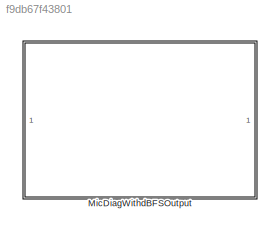
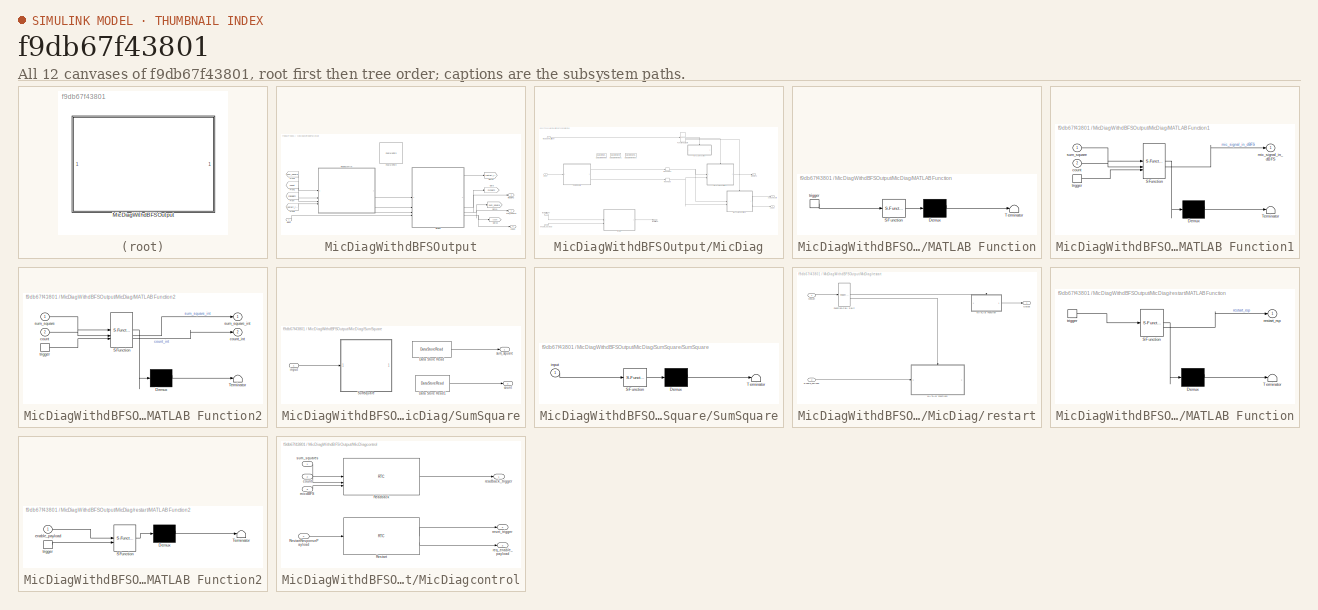
[diagram: thumbnail index - all 12 canvases of the model, root first then tree order]
MODEL slx_f9db67f43801
KIND library
CONFIG AbsTol = auto
CONFIG EnableMultiTasking = off
CONFIG FixedStep = auto
CONFIG MaxStep = auto
CONFIG MinStep = auto
CONFIG RelTol = 1e-3
CONFIG SampleTimeConstraint = Unconstrained
CONFIG SolverName = VariableStepAuto
CONFIG StartTime = 0.0
CONFIG StopTime = 10.0
BLOCK [SubSystem] MicDiagWithdBFSOutput
BLOCK [Reference] MicDiagWithdBFSOutput/FeaturePath  REF=FeaturePath/FeaturePath
  SourceBlock = FeaturePath/FeaturePath
  SourceProductName = Bose Talaria
  SourceType = Talaria Feature Path
BLOCK [From] MicDiagWithdBFSOutput/From
  GotoTag = micdBFS
BLOCK [From] MicDiagWithdBFSOutput/From1
  GotoTag = count
BLOCK [From] MicDiagWithdBFSOutput/From2
  GotoTag = restart_rsp
BLOCK [From] MicDiagWithdBFSOutput/From3
  GotoTag = sum_square
BLOCK [Goto] MicDiagWithdBFSOutput/Goto
  GotoTag = micdBFS
BLOCK [Goto] MicDiagWithdBFSOutput/Goto1
  GotoTag = sum_square
BLOCK [Goto] MicDiagWithdBFSOutput/Goto2
  GotoTag = restart_rsp
BLOCK [Goto] MicDiagWithdBFSOutput/Goto3
  GotoTag = count
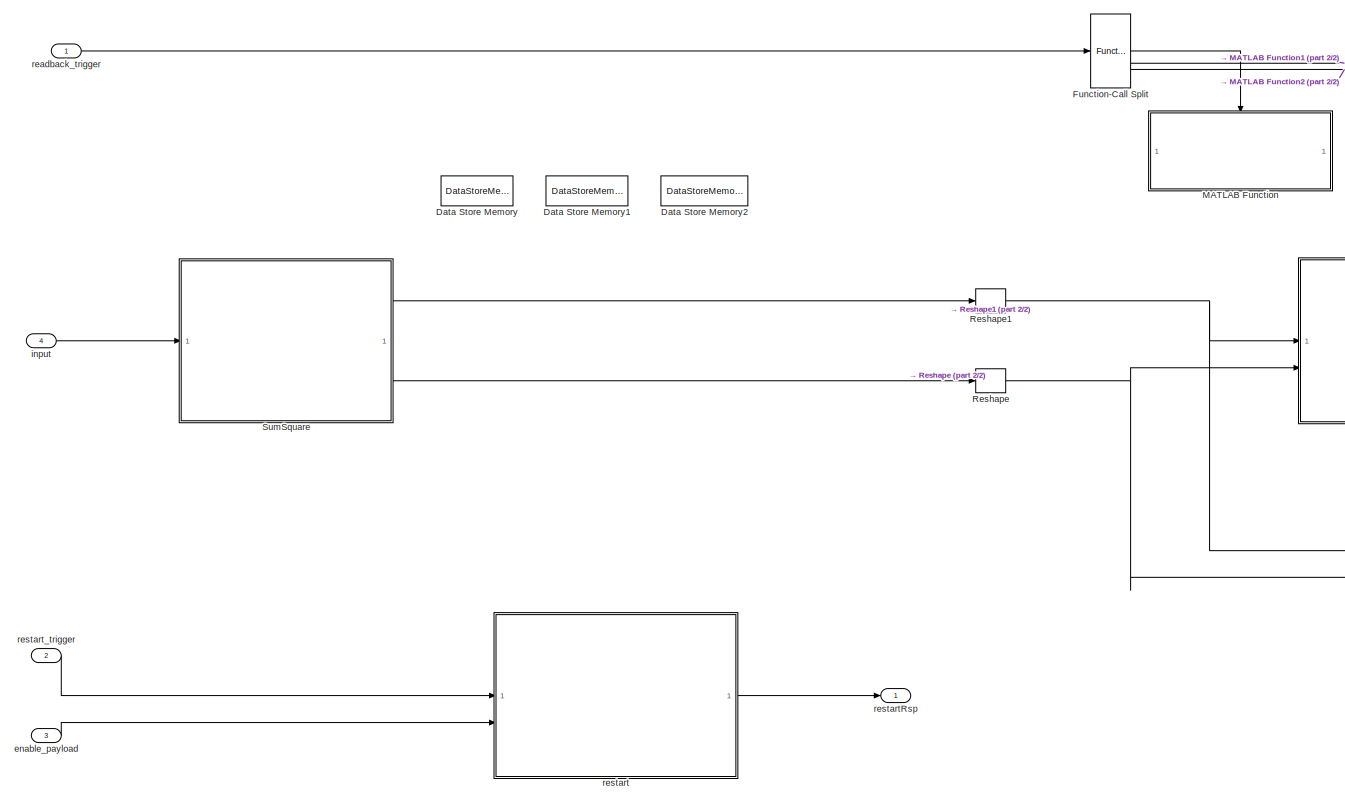
[diagram: MicDiagWithdBFSOutput/MicDiag - part 1/2, center side, full height]
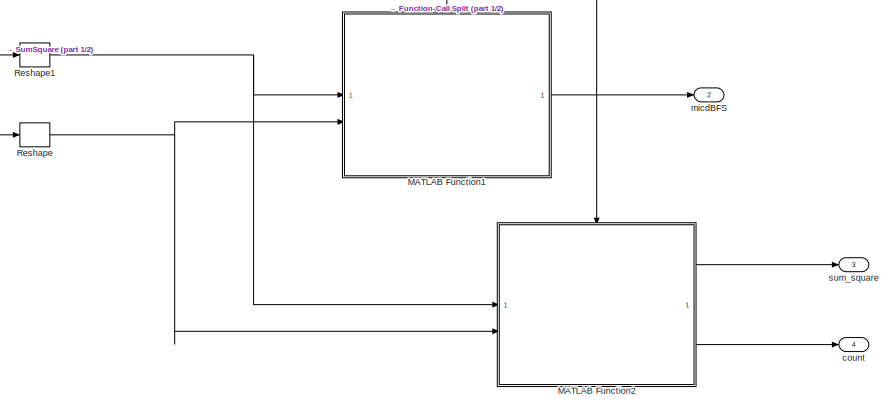
[diagram: MicDiagWithdBFSOutput/MicDiag - part 2/2, middle right region]
BLOCK [SubSystem] MicDiagWithdBFSOutput/MicDiag
BLOCK [DataStoreMemory] MicDiagWithdBFSOutput/MicDiag/Data Store Memory
  DataStoreName = acc_sum
  InitialValue = zeros(numMicIn,1)
  OutDataTypeStr = single
  ShowAdditionalParam = off
  SignalType = real
BLOCK [DataStoreMemory] MicDiagWithdBFSOutput/MicDiag/Data Store Memory1
  DataStoreName = count
  InitialValue = zeros(numMicIn,1)
  OutDataTypeStr = int32
  ShowAdditionalParam = off
  SignalType = real
BLOCK [DataStoreMemory] MicDiagWithdBFSOutput/MicDiag/Data Store Memory2
  DataStoreName = enable
  InitialValue = zeros(numMicIn,1)
  OutDataTypeStr = int32
  ShowAdditionalParam = off
  SignalType = real
BLOCK [FunctionCallSplit] MicDiagWithdBFSOutput/MicDiag/Function-Call Split
  IconShape = distinctive
  NumOutputPorts = 3
BLOCK [SubSystem] MicDiagWithdBFSOutput/MicDiag/MATLAB Function
  ErrorFcn = Stateflow.Translate.translate
  PermitHierarchicalResolution = ExplicitOnly
  SFBlockType = MATLAB Function
  TreatAsAtomicUnit = on
BLOCK [Demux] MicDiagWithdBFSOutput/MicDiag/MATLAB Function/ Demux 
  Outputs = 1
BLOCK [S-Function] MicDiagWithdBFSOutput/MicDiag/MATLAB Function/ SFunction 
  EnableBusSupport = off
  FunctionName = sf_sfun
  PortCounts = [1 1]
  SFcnIsStateOwnerBlock = off
  SFunctionDeploymentMode = off
  Tag = Stateflow S-Function 1
BLOCK [Terminator] MicDiagWithdBFSOutput/MicDiag/MATLAB Function/ Terminator 
BLOCK [TriggerPort] MicDiagWithdBFSOutput/MicDiag/MATLAB Function/trigger
  ShowOutputPort = on
  StatesWhenEnabling = held
  TriggerType = function-call
  VariantControl = (inherit)
BLOCK [SubSystem] MicDiagWithdBFSOutput/MicDiag/MATLAB Function1
  ErrorFcn = Stateflow.Translate.translate
  PermitHierarchicalResolution = ExplicitOnly
  SFBlockType = MATLAB Function
  TreatAsAtomicUnit = on
BLOCK [Demux] MicDiagWithdBFSOutput/MicDiag/MATLAB Function1/ Demux 
  Outputs = 1
BLOCK [S-Function] MicDiagWithdBFSOutput/MicDiag/MATLAB Function1/ SFunction 
  EnableBusSupport = off
  FunctionName = sf_sfun
  PortCounts = [3 2]
  SFcnIsStateOwnerBlock = off
  SFunctionDeploymentMode = off
  Tag = Stateflow S-Function 5
BLOCK [Terminator] MicDiagWithdBFSOutput/MicDiag/MATLAB Function1/ Terminator 
BLOCK [Inport] MicDiagWithdBFSOutput/MicDiag/MATLAB Function1/count
  Port = 2
BLOCK [Outport] MicDiagWithdBFSOutput/MicDiag/MATLAB Function1/mic_signal_in_dBFS
BLOCK [Inport] MicDiagWithdBFSOutput/MicDiag/MATLAB Function1/sum_square
BLOCK [TriggerPort] MicDiagWithdBFSOutput/MicDiag/MATLAB Function1/trigger
  ShowOutputPort = on
  StatesWhenEnabling = held
  TriggerType = function-call
  VariantControl = (inherit)
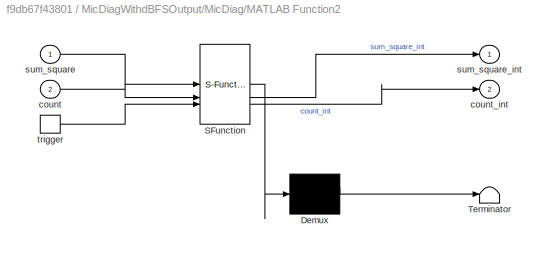
BLOCK [SubSystem] MicDiagWithdBFSOutput/MicDiag/MATLAB Function2
  ErrorFcn = Stateflow.Translate.translate
  PermitHierarchicalResolution = ExplicitOnly
  SFBlockType = MATLAB Function
  TreatAsAtomicUnit = on
BLOCK [Demux] MicDiagWithdBFSOutput/MicDiag/MATLAB Function2/ Demux 
  Outputs = 1
BLOCK [S-Function] MicDiagWithdBFSOutput/MicDiag/MATLAB Function2/ SFunction 
  EnableBusSupport = off
  FunctionName = sf_sfun
  PortCounts = [3 3]
  SFcnIsStateOwnerBlock = off
  SFunctionDeploymentMode = off
  Tag = Stateflow S-Function 6
BLOCK [Terminator] MicDiagWithdBFSOutput/MicDiag/MATLAB Function2/ Terminator 
BLOCK [Inport] MicDiagWithdBFSOutput/MicDiag/MATLAB Function2/count
  Port = 2
BLOCK [Outport] MicDiagWithdBFSOutput/MicDiag/MATLAB Function2/count_int
  Port = 2
BLOCK [Inport] MicDiagWithdBFSOutput/MicDiag/MATLAB Function2/sum_square
BLOCK [Outport] MicDiagWithdBFSOutput/MicDiag/MATLAB Function2/sum_square_int
BLOCK [TriggerPort] MicDiagWithdBFSOutput/MicDiag/MATLAB Function2/trigger
  ShowOutputPort = on
  StatesWhenEnabling = held
  TriggerType = function-call
  VariantControl = (inherit)
BLOCK [Reshape] MicDiagWithdBFSOutput/MicDiag/Reshape
  OutputDimensionality = Row vector (2-D)
BLOCK [Reshape] MicDiagWithdBFSOutput/MicDiag/Reshape1
  OutputDimensionality = Row vector (2-D)
BLOCK [SubSystem] MicDiagWithdBFSOutput/MicDiag/SumSquare
BLOCK [DataStoreRead] MicDiagWithdBFSOutput/MicDiag/SumSquare/Data Store Read
  DataStoreName = acc_sum
  IndexOptions = Index vector (dialog)
  Indices = 1
  OutputSizes = 1
BLOCK [DataStoreRead] MicDiagWithdBFSOutput/MicDiag/SumSquare/Data Store Read1
  DataStoreName = count
  IndexOptions = Index vector (dialog)
  Indices = 1
  OutputSizes = 1
BLOCK [SubSystem] MicDiagWithdBFSOutput/MicDiag/SumSquare/SumSquare
  ErrorFcn = Stateflow.Translate.translate
  PermitHierarchicalResolution = ExplicitOnly
  SFBlockType = MATLAB Function
  TreatAsAtomicUnit = on
BLOCK [Demux] MicDiagWithdBFSOutput/MicDiag/SumSquare/SumSquare/ Demux 
  Outputs = 1
BLOCK [S-Function] MicDiagWithdBFSOutput/MicDiag/SumSquare/SumSquare/ SFunction 
  EnableBusSupport = off
  FunctionName = sf_sfun
  PortCounts = [1 1]
  SFcnIsStateOwnerBlock = off
  SFunctionDeploymentMode = off
  Tag = Stateflow S-Function 2
BLOCK [Terminator] MicDiagWithdBFSOutput/MicDiag/SumSquare/SumSquare/ Terminator 
BLOCK [Inport] MicDiagWithdBFSOutput/MicDiag/SumSquare/SumSquare/input
BLOCK [Outport] MicDiagWithdBFSOutput/MicDiag/SumSquare/count
  Port = 2
BLOCK [Inport] MicDiagWithdBFSOutput/MicDiag/SumSquare/input
BLOCK [Outport] MicDiagWithdBFSOutput/MicDiag/SumSquare/sum_square
BLOCK [Outport] MicDiagWithdBFSOutput/MicDiag/count
  OutDataTypeStr = uint32
  Port = 4
BLOCK [Inport] MicDiagWithdBFSOutput/MicDiag/enable_payload
  Port = 3
BLOCK [Inport] MicDiagWithdBFSOutput/MicDiag/input
  OutDataTypeStr = single
  Port = 4
BLOCK [Outport] MicDiagWithdBFSOutput/MicDiag/micdBFS
  OutDataTypeStr = single
  Port = 2
BLOCK [Inport] MicDiagWithdBFSOutput/MicDiag/readback_trigger
BLOCK [SubSystem] MicDiagWithdBFSOutput/MicDiag/restart
BLOCK [Inport] MicDiagWithdBFSOutput/MicDiag/restart/Enable_payload
  Port = 2
BLOCK [FunctionCallSplit] MicDiagWithdBFSOutput/MicDiag/restart/Function-Call Split
  IconShape = distinctive
  NumOutputPorts = 2
  OutputPortLayout = default
BLOCK [SubSystem] MicDiagWithdBFSOutput/MicDiag/restart/MATLAB Function
  ErrorFcn = Stateflow.Translate.translate
  PermitHierarchicalResolution = ExplicitOnly
  SFBlockType = MATLAB Function
  TreatAsAtomicUnit = on
BLOCK [Demux] MicDiagWithdBFSOutput/MicDiag/restart/MATLAB Function/ Demux 
  Outputs = 1
BLOCK [S-Function] MicDiagWithdBFSOutput/MicDiag/restart/MATLAB Function/ SFunction 
  EnableBusSupport = off
  FunctionName = sf_sfun
  PortCounts = [1 2]
  SFcnIsStateOwnerBlock = off
  SFunctionDeploymentMode = off
  Tag = Stateflow S-Function 3
BLOCK [Terminator] MicDiagWithdBFSOutput/MicDiag/restart/MATLAB Function/ Terminator 
BLOCK [Outport] MicDiagWithdBFSOutput/MicDiag/restart/MATLAB Function/restart_rsp
BLOCK [TriggerPort] MicDiagWithdBFSOutput/MicDiag/restart/MATLAB Function/trigger
  ShowOutputPort = on
  StatesWhenEnabling = held
  TriggerType = function-call
  VariantControl = (inherit)
BLOCK [SubSystem] MicDiagWithdBFSOutput/MicDiag/restart/MATLAB Function2
  ErrorFcn = Stateflow.Translate.translate
  PermitHierarchicalResolution = ExplicitOnly
  SFBlockType = MATLAB Function
  TreatAsAtomicUnit = on
BLOCK [Demux] MicDiagWithdBFSOutput/MicDiag/restart/MATLAB Function2/ Demux 
  Outputs = 1
BLOCK [S-Function] MicDiagWithdBFSOutput/MicDiag/restart/MATLAB Function2/ SFunction 
  EnableBusSupport = off
  FunctionName = sf_sfun
  PortCounts = [2 1]
  SFcnIsStateOwnerBlock = off
  SFunctionDeploymentMode = off
  Tag = Stateflow S-Function 4
BLOCK [Terminator] MicDiagWithdBFSOutput/MicDiag/restart/MATLAB Function2/ Terminator 
BLOCK [Inport] MicDiagWithdBFSOutput/MicDiag/restart/MATLAB Function2/enable_payload
BLOCK [TriggerPort] MicDiagWithdBFSOutput/MicDiag/restart/MATLAB Function2/trigger
  ShowOutputPort = on
  StatesWhenEnabling = held
  TriggerType = function-call
  VariantControl = (inherit)
BLOCK [Outport] MicDiagWithdBFSOutput/MicDiag/restart/Output
BLOCK [Inport] MicDiagWithdBFSOutput/MicDiag/restart/restart
BLOCK [Outport] MicDiagWithdBFSOutput/MicDiag/restartRsp
BLOCK [Inport] MicDiagWithdBFSOutput/MicDiag/restart_trigger
  Port = 2
BLOCK [Outport] MicDiagWithdBFSOutput/MicDiag/sum_square
  OutDataTypeStr = uint32
  Port = 3
BLOCK [SubSystem] MicDiagWithdBFSOutput/MicDiagcontrol
BLOCK [Reference] MicDiagWithdBFSOutput/MicDiagcontrol/Readback  REF=RTC/RTC
  SourceBlock = RTC/RTC
  SourceProductName = Bose Talaria
  SourceType = Talaria RTC Receive
BLOCK [Reference] MicDiagWithdBFSOutput/MicDiagcontrol/Restart  REF=RTC/RTC
  SourceBlock = RTC/RTC
  SourceProductName = Bose Talaria
  SourceType = Talaria RTC Receive
BLOCK [Inport] MicDiagWithdBFSOutput/MicDiagcontrol/RestartResponsePayload
  Port = 4
BLOCK [Inport] MicDiagWithdBFSOutput/MicDiagcontrol/count
  Port = 2
BLOCK [Inport] MicDiagWithdBFSOutput/MicDiagcontrol/micdBFS
  Port = 3
BLOCK [Outport] MicDiagWithdBFSOutput/MicDiagcontrol/readback_trigger
BLOCK [Outport] MicDiagWithdBFSOutput/MicDiagcontrol/req_enable_payload
  Port = 3
BLOCK [Outport] MicDiagWithdBFSOutput/MicDiagcontrol/reset_trigger
  Port = 2
BLOCK [Inport] MicDiagWithdBFSOutput/MicDiagcontrol/sum_squares
BLOCK [Outport] MicDiagWithdBFSOutput/count
  Port = 2
BLOCK [Inport] MicDiagWithdBFSOutput/input
BLOCK [Outport] MicDiagWithdBFSOutput/micdBFS
  Port = 3
BLOCK [Outport] MicDiagWithdBFSOutput/sum_square
LINE MicDiagWithdBFSOutput/From1:1 -> MicDiagWithdBFSOutput/MicDiagcontrol:2
LINE MicDiagWithdBFSOutput/From2:1 -> MicDiagWithdBFSOutput/MicDiagcontrol:4
LINE MicDiagWithdBFSOutput/From3:1 -> MicDiagWithdBFSOutput/MicDiagcontrol:1
LINE MicDiagWithdBFSOutput/From:1 -> MicDiagWithdBFSOutput/MicDiagcontrol:3
LINE MicDiagWithdBFSOutput/MicDiag/Function-Call Split:1 -> MicDiagWithdBFSOutput/MicDiag/MATLAB Function:trigger
LINE MicDiagWithdBFSOutput/MicDiag/Function-Call Split:2 -> MicDiagWithdBFSOutput/MicDiag/MATLAB Function1:trigger
LINE MicDiagWithdBFSOutput/MicDiag/Function-Call Split:3 -> MicDiagWithdBFSOutput/MicDiag/MATLAB Function2:trigger
LINE MicDiagWithdBFSOutput/MicDiag/MATLAB Function1:1 -> MicDiagWithdBFSOutput/MicDiag/micdBFS:1
LINE MicDiagWithdBFSOutput/MicDiag/MATLAB Function2:1 -> MicDiagWithdBFSOutput/MicDiag/sum_square:1
LINE MicDiagWithdBFSOutput/MicDiag/MATLAB Function2:2 -> MicDiagWithdBFSOutput/MicDiag/count:1
NET MicDiagWithdBFSOutput/MicDiag/Reshape1:1 -> MicDiagWithdBFSOutput/MicDiag/MATLAB Function1:1, MicDiagWithdBFSOutput/MicDiag/MATLAB Function2:1
NET MicDiagWithdBFSOutput/MicDiag/Reshape:1 -> MicDiagWithdBFSOutput/MicDiag/MATLAB Function1:2, MicDiagWithdBFSOutput/MicDiag/MATLAB Function2:2
LINE MicDiagWithdBFSOutput/MicDiag/SumSquare/Data Store Read1:1 -> MicDiagWithdBFSOutput/MicDiag/SumSquare/count:1
LINE MicDiagWithdBFSOutput/MicDiag/SumSquare/Data Store Read:1 -> MicDiagWithdBFSOutput/MicDiag/SumSquare/sum_square:1
LINE MicDiagWithdBFSOutput/MicDiag/SumSquare/input:1 -> MicDiagWithdBFSOutput/MicDiag/SumSquare/SumSquare:1
LINE MicDiagWithdBFSOutput/MicDiag/SumSquare:1 -> MicDiagWithdBFSOutput/MicDiag/Reshape1:1
LINE MicDiagWithdBFSOutput/MicDiag/SumSquare:2 -> MicDiagWithdBFSOutput/MicDiag/Reshape:1
LINE MicDiagWithdBFSOutput/MicDiag/enable_payload:1 -> MicDiagWithdBFSOutput/MicDiag/restart:2
LINE MicDiagWithdBFSOutput/MicDiag/input:1 -> MicDiagWithdBFSOutput/MicDiag/SumSquare:1
LINE MicDiagWithdBFSOutput/MicDiag/readback_trigger:1 -> MicDiagWithdBFSOutput/MicDiag/Function-Call Split:1
LINE MicDiagWithdBFSOutput/MicDiag/restart/Enable_payload:1 -> MicDiagWithdBFSOutput/MicDiag/restart/MATLAB Function2:1
LINE MicDiagWithdBFSOutput/MicDiag/restart/Function-Call Split:1 -> MicDiagWithdBFSOutput/MicDiag/restart/MATLAB Function:trigger
LINE MicDiagWithdBFSOutput/MicDiag/restart/Function-Call Split:2 -> MicDiagWithdBFSOutput/MicDiag/restart/MATLAB Function2:trigger
LINE MicDiagWithdBFSOutput/MicDiag/restart/MATLAB Function:1 -> MicDiagWithdBFSOutput/MicDiag/restart/Output:1
LINE MicDiagWithdBFSOutput/MicDiag/restart/restart:1 -> MicDiagWithdBFSOutput/MicDiag/restart/Function-Call Split:1
LINE MicDiagWithdBFSOutput/MicDiag/restart:1 -> MicDiagWithdBFSOutput/MicDiag/restartRsp:1
LINE MicDiagWithdBFSOutput/MicDiag/restart_trigger:1 -> MicDiagWithdBFSOutput/MicDiag/restart:1
LINE MicDiagWithdBFSOutput/MicDiag:1 -> MicDiagWithdBFSOutput/Goto2:1
NET MicDiagWithdBFSOutput/MicDiag:2 -> MicDiagWithdBFSOutput/Goto:1, MicDiagWithdBFSOutput/micdBFS:1
NET MicDiagWithdBFSOutput/MicDiag:3 -> MicDiagWithdBFSOutput/Goto1:1, MicDiagWithdBFSOutput/sum_square:1
NET MicDiagWithdBFSOutput/MicDiag:4 -> MicDiagWithdBFSOutput/Goto3:1, MicDiagWithdBFSOutput/count:1
LINE MicDiagWithdBFSOutput/MicDiagcontrol/Readback:1 -> MicDiagWithdBFSOutput/MicDiagcontrol/readback_trigger:1
LINE MicDiagWithdBFSOutput/MicDiagcontrol/Restart:1 -> MicDiagWithdBFSOutput/MicDiagcontrol/reset_trigger:1
LINE MicDiagWithdBFSOutput/MicDiagcontrol/Restart:2 -> MicDiagWithdBFSOutput/MicDiagcontrol/req_enable_payload:1
LINE MicDiagWithdBFSOutput/MicDiagcontrol/RestartResponsePayload:1 -> MicDiagWithdBFSOutput/MicDiagcontrol/Restart:1
LINE MicDiagWithdBFSOutput/MicDiagcontrol/count:1 -> MicDiagWithdBFSOutput/MicDiagcontrol/Readback:2
LINE MicDiagWithdBFSOutput/MicDiagcontrol/micdBFS:1 -> MicDiagWithdBFSOutput/MicDiagcontrol/Readback:3
LINE MicDiagWithdBFSOutput/MicDiagcontrol/sum_squares:1 -> MicDiagWithdBFSOutput/MicDiagcontrol/Readback:1
LINE MicDiagWithdBFSOutput/MicDiagcontrol:1 -> MicDiagWithdBFSOutput/MicDiag:1
LINE MicDiagWithdBFSOutput/MicDiagcontrol:2 -> MicDiagWithdBFSOutput/MicDiag:2
LINE MicDiagWithdBFSOutput/MicDiagcontrol:3 -> MicDiagWithdBFSOutput/MicDiag:3
LINE MicDiagWithdBFSOutput/input:1 -> MicDiagWithdBFSOutput/MicDiag:4
note: NET lines group one-source signal fan-out (src -> all destinations, sorted); 1:1 wires keep LINE
CHART MicDiagWithdBFSOutput/MicDiag/MATLAB Function states=1 transitions=1
  STATE_LABEL 'eML_blk_kernel()'
  STATE_LABEL 'SCRIPT:\nfunction ReadbackDisableAccumulation\n    %#codegen\n    % datastore memory to control the audio processing logic:\n    global enable;\n    % find the size of the enable \n    numIn = length(enable);\n    % When Readback is requested,accumulation of sum of sqaure shall freeze\n    enable = int32(zeros(numIn,1));\nend   \n'
CHART MicDiagWithdBFSOutput/MicDiag/SumSquare/SumSquare states=1 transitions=1
  STATE_LABEL 'eML_blk_kernel()'
  STATE_LABEL 'SCRIPT:\nfunction sumsquare(input)\n    %#codegen\n    % datastore memory to control the audio processing logic:\n    global acc_sum;\n    global count;\n    global enable;\n    % number of mic\n    numMicIn = size(input,2);\n    % frame size\n    framesize = size(input,1);\n    % Compute sum_of_squares and count\n    % if corresponding mic is enabled(which is a RTC message) \n    for MicIn = 1:numMicIn\n      ...<+186ch>'
CHART MicDiagWithdBFSOutput/MicDiag/restart/MATLAB Function states=1 transitions=1
  STATE_LABEL 'eML_blk_kernel()'
  STATE_LABEL 'SCRIPT:\nfunction restart_rsp = GenRestartRsp \n% Return the restart reponse as 1\n   restart_rsp = int32(1);'
CHART MicDiagWithdBFSOutput/MicDiag/restart/MATLAB Function2 states=1 transitions=1
  STATE_LABEL 'eML_blk_kernel()'
  STATE_LABEL 'SCRIPT:\nfunction restart(enable_payload)\n    %#codegen\n    % datastore memory to control the audio processing logic:\n    global acc_sum;\n    global count;\n    global enable;\n    \n    %Fetch the num of the microphone \n    numMicIn  = length(acc_sum);\n    \n    % freeze the accumulation by clearing enable\n    enable = int32(zeros(numMicIn,1));\n    % clear accumulator\n    acc_sum(1:numMicIn)= single(z...<+299ch>'
CHART MicDiagWithdBFSOutput/MicDiag/MATLAB Function1 states=1 transitions=1
  STATE_LABEL 'eML_blk_kernel()'
  STATE_LABEL 'SCRIPT:\nfunction mic_signal_in_dBFS = calculate_mic_dbfs(sum_square, count)\nEps = 1e-7;\nmaxRMSindB = 3.0103; % abs(db20(1/sqrt(2)))\nnumMicIn = size(sum_square, 2);\nmicRMS = zeros(1, numMicIn);\nmic_signal_in_dBFS = single(zeros(1, numMicIn));\nfor MicIn = 1:numMicIn\n    micRMS(MicIn) = sqrt(sum_square(MicIn)/(single(count(MicIn)) + Eps));\n    mic_signal_in_dBFS(MicIn) = db20(micRMS(MicIn) + Eps) + m...<+293ch>'
CHART MicDiagWithdBFSOutput/MicDiag/MATLAB Function2 states=1 transitions=1
  STATE_LABEL 'eML_blk_kernel()'
  STATE_LABEL 'SCRIPT:\nfunction [sum_square_int, count_int] = convert_to_integer(sum_square, count)\nsum_square_int = uint32(sum_square);\ncount_int = uint32(count);\nend\n'
CHART  states=0 transitions=0
CHART  states=0 transitions=0
CHART  states=0 transitions=0
CHART  states=0 transitions=0
CHART  states=0 transitions=0
CHART  states=0 transitions=0
